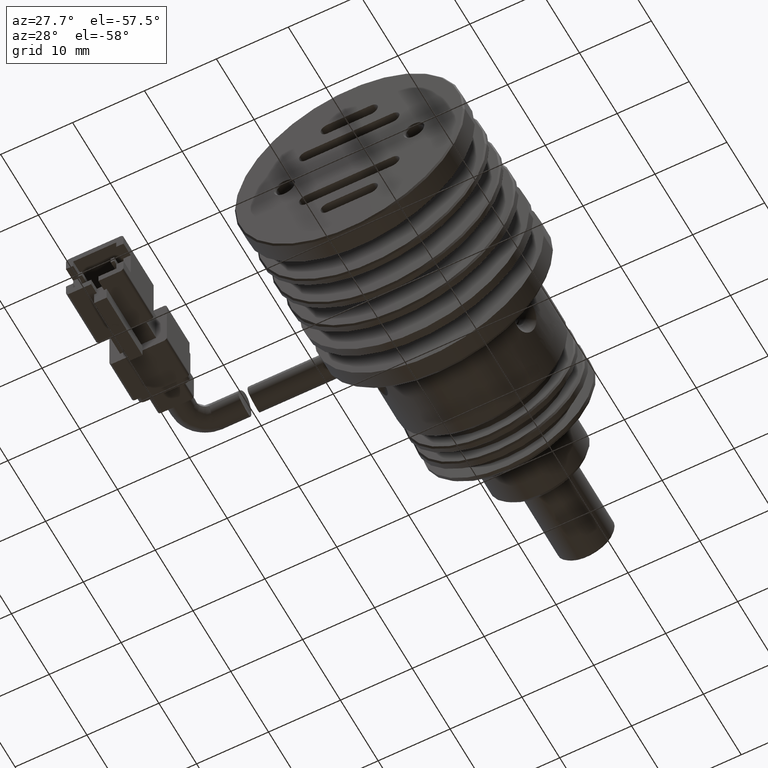
[diagram: clean part render]
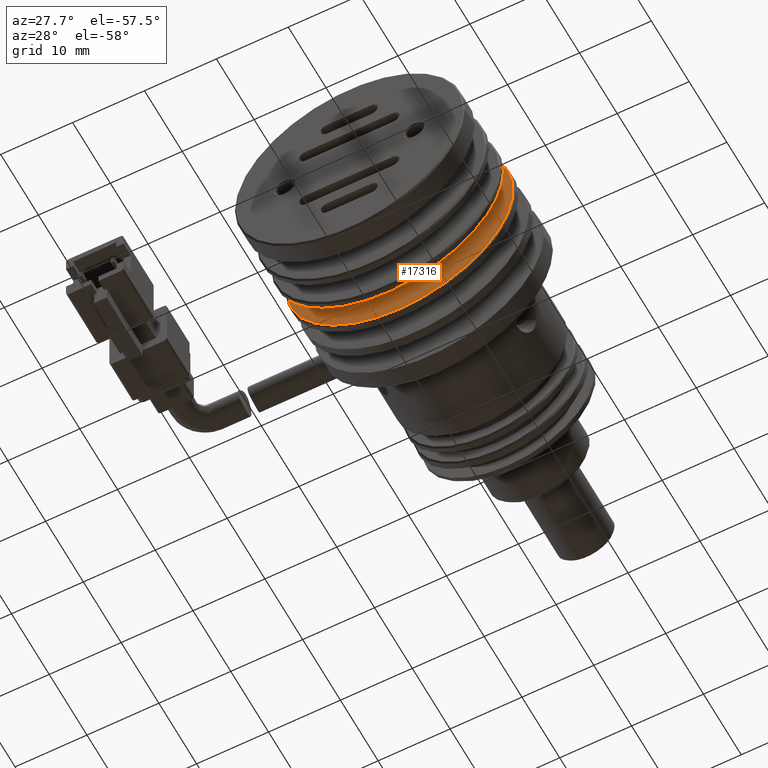
[diagram: same view with one face highlighted and labeled with its STEP entity id]
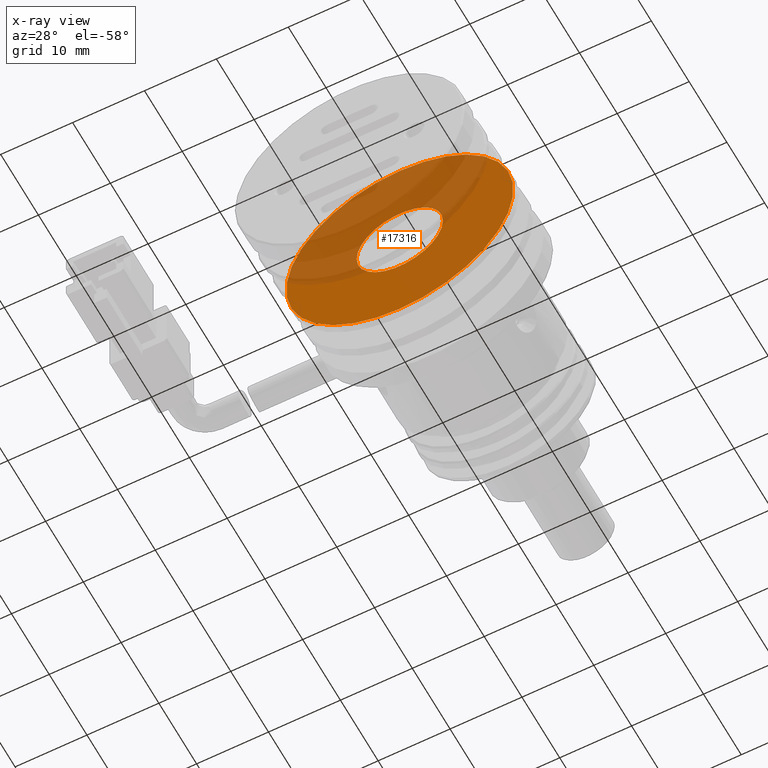
[diagram: x-ray of the same camera — body ghosted, the highlighted face saturated]
A machine part, auxiliary view. The second image highlights one B-rep face of the part: STEP entity #17316.
The next image is the same camera in x-ray: the body ghosted, the highlighted face saturated — about 47% of this face is hidden behind the body in this view.
In plain terms, the highlighted planar face has unit normal (-0, -1, -0).
Its self-contained STEP definition (entity closure, byte-faithful):
#600 = FACE_OUTER_BOUND ( 'NONE', #10359, .T. ) ;
#726 = CIRCLE ( 'NONE', #3807, 15.80000000000005000 ) ;
#972 = AXIS2_PLACEMENT_3D ( 'NONE', #17349, #8176, #18913 ) ;
#1284 = CARTESIAN_POINT ( 'NONE',  ( 2.574933787635692400, -26.31493551001259200, -9.174035921659418900 ) ) ;
#1758 = DIRECTION ( 'NONE',  ( -1.156482317317871500E-016, -1.000000000000000000, -0.0000000000000000000 ) ) ;
#2821 = DIRECTION ( 'NONE',  ( 0.0000000000000000000, 0.0000000000000000000, 1.000000000000000000 ) ) ;
#2874 = CARTESIAN_POINT ( 'NONE',  ( 2.574933787635692400, -26.31493551001259200, 6.625964078340630600 ) ) ;
#3071 = VERTEX_POINT ( 'NONE', #6202 ) ;
#3807 = AXIS2_PLACEMENT_3D ( 'NONE', #1284, #12011, #2821 ) ;
#4235 = ORIENTED_EDGE ( 'NONE', *, *, #16078, .T. ) ;
#4293 = ORIENTED_EDGE ( 'NONE', *, *, #6531, .T. ) ;
#4536 = DIRECTION ( 'NONE',  ( 1.156482317317871500E-016, 1.000000000000000000, -0.0000000000000000000 ) ) ;
#5008 = CARTESIAN_POINT ( 'NONE',  ( 2.574933787635692400, -26.31493551001259200, -9.174035921659418900 ) ) ;
#5546 = AXIS2_PLACEMENT_3D ( 'NONE', #10969, #1758, #12517 ) ;
#6202 = CARTESIAN_POINT ( 'NONE',  ( 2.574933787635694100, -26.31493551001259200, -24.97403592165947100 ) ) ;
#6531 = EDGE_CURVE ( 'NONE', #9964, #17834, #19876, .T. ) ;
#6563 = DIRECTION ( 'NONE',  ( 0.0000000000000000000, 0.0000000000000000000, 1.000000000000000000 ) ) ;
#8062 = VERTEX_POINT ( 'NONE', #2874 ) ;
#8176 = DIRECTION ( 'NONE',  ( 1.156482317317871500E-016, 1.000000000000000000, -0.0000000000000000000 ) ) ;
#8280 = FACE_BOUND ( 'NONE', #18986, .T. ) ;
#9964 = VERTEX_POINT ( 'NONE', #16120 ) ;
#10359 = EDGE_LOOP ( 'NONE', ( #12483, #11427 ) ) ;
#10969 = CARTESIAN_POINT ( 'NONE',  ( 18.57493378763572900, -26.31493551001259900, -9.174035921659418900 ) ) ;
#11427 = ORIENTED_EDGE ( 'NONE', *, *, #16029, .F. ) ;
#12011 = DIRECTION ( 'NONE',  ( 0.0000000000000000000, 1.000000000000000000, -5.421010862427522200E-017 ) ) ;
#12026 = CARTESIAN_POINT ( 'NONE',  ( 8.574933787635734100, -26.31493551001259900, -9.174035921659418900 ) ) ;
#12483 = ORIENTED_EDGE ( 'NONE', *, *, #12628, .F. ) ;
#12517 = DIRECTION ( 'NONE',  ( -1.000000000000000000, 1.156482317317871500E-016, 0.0000000000000000000 ) ) ;
#12628 = EDGE_CURVE ( 'NONE', #8062, #3071, #15691, .T. ) ;
#13205 = CIRCLE ( 'NONE', #16141, 6.000000000000040000 ) ;
#13741 = CARTESIAN_POINT ( 'NONE',  ( 2.574933787635694100, -26.31493551001259900, -9.174035921659418900 ) ) ;
#15286 = DIRECTION ( 'NONE',  ( -1.000000000000000000, 0.0000000000000000000, 0.0000000000000000000 ) ) ;
#15691 = CIRCLE ( 'NONE', #15826, 15.80000000000005000 ) ;
#15733 = DIRECTION ( 'NONE',  ( 0.0000000000000000000, 1.000000000000000000, -5.421010862427522200E-017 ) ) ;
#15826 = AXIS2_PLACEMENT_3D ( 'NONE', #5008, #15733, #6563 ) ;
#16029 = EDGE_CURVE ( 'NONE', #3071, #8062, #726, .T. ) ;
#16078 = EDGE_CURVE ( 'NONE', #17834, #9964, #13205, .T. ) ;
#16120 = CARTESIAN_POINT ( 'NONE',  ( -3.425066212364345800, -26.31493551001259900, -9.174035921659418900 ) ) ;
#16141 = AXIS2_PLACEMENT_3D ( 'NONE', #13741, #4536, #15286 ) ;
#16841 = PLANE ( 'NONE',  #5546 ) ;
#17316 = ADVANCED_FACE ( 'NONE', ( #8280, #600 ), #16841, .T. ) ;
#17349 = CARTESIAN_POINT ( 'NONE',  ( 2.574933787635694100, -26.31493551001259900, -9.174035921659418900 ) ) ;
#17834 = VERTEX_POINT ( 'NONE', #12026 ) ;
#18913 = DIRECTION ( 'NONE',  ( -1.000000000000000000, 0.0000000000000000000, 0.0000000000000000000 ) ) ;
#18986 = EDGE_LOOP ( 'NONE', ( #4293, #4235 ) ) ;
#19876 = CIRCLE ( 'NONE', #972, 6.000000000000040000 ) ;